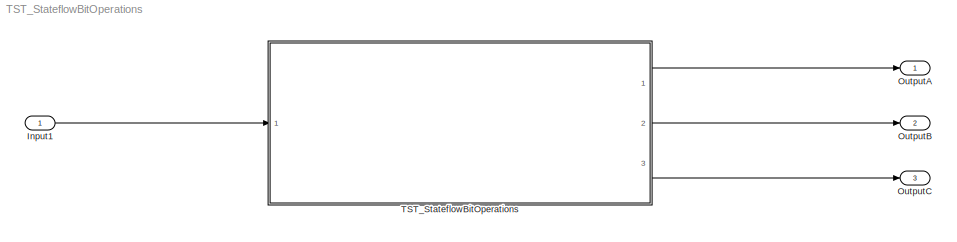
MODEL TST_StateflowBitOperations
KIND model
BLOCK [Inport] Input1
  BusOutputAsStruct = on
  IconDisplay = Port number
  OutDataTypeStr = uint32
  SID = 23
BLOCK [Outport] OutputA
  IconDisplay = Port number
  OutDataTypeStr = double
  PortDimensions = 1
  SID = 25
BLOCK [Outport] OutputB
  IconDisplay = Port number
  OutDataTypeStr = double
  Port = 2
  PortDimensions = 1
  SID = 32
BLOCK [Outport] OutputC
  IconDisplay = Port number
  OutDataTypeStr = double
  Port = 3
  PortDimensions = 1
  SID = 37
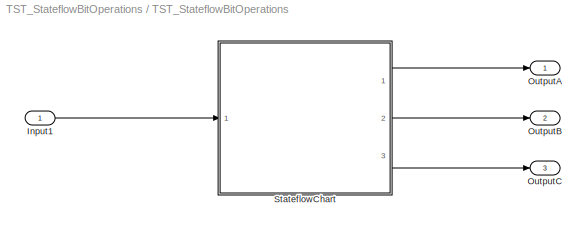
BLOCK [SubSystem] TST_StateflowBitOperations
  Ports = [1, 3]
  RequestExecContextInheritance = off
  SID = 2
  TreatAsAtomicUnit = on
BLOCK [Inport] TST_StateflowBitOperations/Input1
  BusOutputAsStruct = on
  IconDisplay = Port number
  OutDataTypeStr = uint32
  SID = 39
BLOCK [Outport] TST_StateflowBitOperations/OutputA
  IconDisplay = Port number
  OutDataTypeStr = double
  PortDimensions = 1
  SID = 40
BLOCK [Outport] TST_StateflowBitOperations/OutputB
  IconDisplay = Port number
  OutDataTypeStr = double
  Port = 2
  PortDimensions = 1
  SID = 41
BLOCK [Outport] TST_StateflowBitOperations/OutputC
  IconDisplay = Port number
  OutDataTypeStr = double
  Port = 3
  PortDimensions = 1
  SID = 42
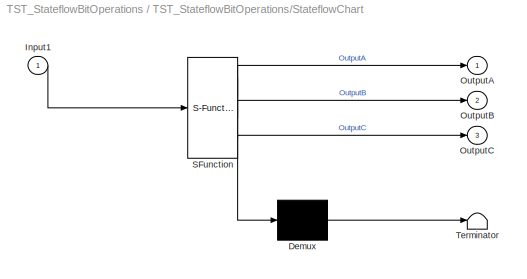
BLOCK [SubSystem] TST_StateflowBitOperations/StateflowChart
  ErrorFcn = Stateflow.Translate.translate
  PermitHierarchicalResolution = ExplicitOnly
  Ports = [1, 3]
  RequestExecContextInheritance = off
  SFBlockType = Chart
  SID = 43
  TreatAsAtomicUnit = on
BLOCK [Demux] TST_StateflowBitOperations/StateflowChart/ Demux 
  Outputs = 1
  Ports = [1, 1]
  SID = 43::18
BLOCK [S-Function] TST_StateflowBitOperations/StateflowChart/ SFunction 
  EnableBusSupport = off
  FunctionName = sf_sfun
  PortCounts = [1 4]
  Ports = [1, 4]
  SFcnIsStateOwnerBlock = off
  SFunctionDeploymentMode = off
  SID = 43::17
  Tag = Stateflow S-Function 1
BLOCK [Terminator] TST_StateflowBitOperations/StateflowChart/ Terminator 
  SID = 43::19
BLOCK [Inport] TST_StateflowBitOperations/StateflowChart/Input1
  IconDisplay = Port number
  SID = 43::9
BLOCK [Outport] TST_StateflowBitOperations/StateflowChart/OutputA
  IconDisplay = Port number
  SID = 43::10
BLOCK [Outport] TST_StateflowBitOperations/StateflowChart/OutputB
  IconDisplay = Port number
  Port = 2
  SID = 43::11
BLOCK [Outport] TST_StateflowBitOperations/StateflowChart/OutputC
  IconDisplay = Port number
  Port = 3
  SID = 43::12
LINE Input1:1 -> TST_StateflowBitOperations:1
LINE TST_StateflowBitOperations/Input1:1 -> TST_StateflowBitOperations/StateflowChart:1
LINE TST_StateflowBitOperations/StateflowChart/ Demux :1 -> TST_StateflowBitOperations/StateflowChart/ Terminator :1
LINE TST_StateflowBitOperations/StateflowChart/ SFunction :1 -> TST_StateflowBitOperations/StateflowChart/ Demux :1
LINE TST_StateflowBitOperations/StateflowChart/ SFunction :2 -> TST_StateflowBitOperations/StateflowChart/OutputA:1
LINE TST_StateflowBitOperations/StateflowChart/ SFunction :3 -> TST_StateflowBitOperations/StateflowChart/OutputB:1
LINE TST_StateflowBitOperations/StateflowChart/ SFunction :4 -> TST_StateflowBitOperations/StateflowChart/OutputC:1
LINE TST_StateflowBitOperations/StateflowChart/Input1:1 -> TST_StateflowBitOperations/StateflowChart/ SFunction :1
LINE TST_StateflowBitOperations/StateflowChart:1 -> TST_StateflowBitOperations/OutputA:1
LINE TST_StateflowBitOperations/StateflowChart:2 -> TST_StateflowBitOperations/OutputB:1
LINE TST_StateflowBitOperations/StateflowChart:3 -> TST_StateflowBitOperations/OutputC:1
LINE TST_StateflowBitOperations:1 -> OutputA:1
LINE TST_StateflowBitOperations:2 -> OutputB:1
LINE TST_StateflowBitOperations:3 -> OutputC:1
CHART TST_StateflowBitOperations/StateflowChart states=2 transitions=3
  STATE_LABEL 'DummyState\\nentry:\\n% reset CrcValue\\nCrcValue = uint16(0);\\n% feed first byte\\nCrcValue = UpdateCrc16(CrcValue, uint8(123));\\n% feed second byte\\nCrcValue = UpdateCrc16(CrcValue, uint8(234));\\n% feed third byte, etc...\\nCrcValue = UpdateCrc16(CrcValue, uint8(234));\\n\\n% split the resultinh uint16 CrcValue into uint8 high and low byte\\nCrcBytes[uint32(0)] = (uint16(65280) & CrcValue) >> uint32(8);...<+47ch>'
  STATE_LABEL 'CrcResult = UpdateCrc16(CrcStartValue, CurrentByte)'
